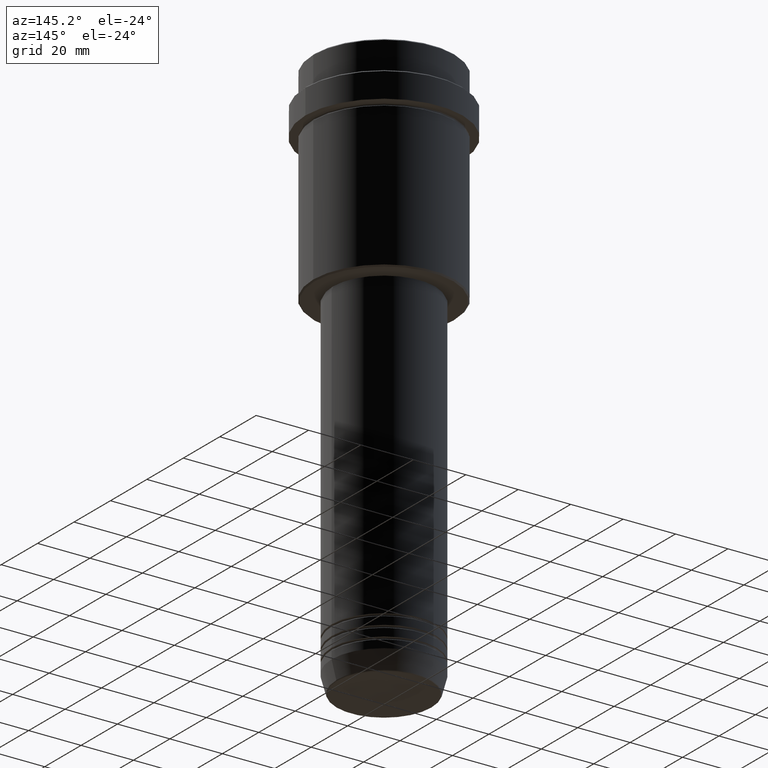
[diagram: clean part render]
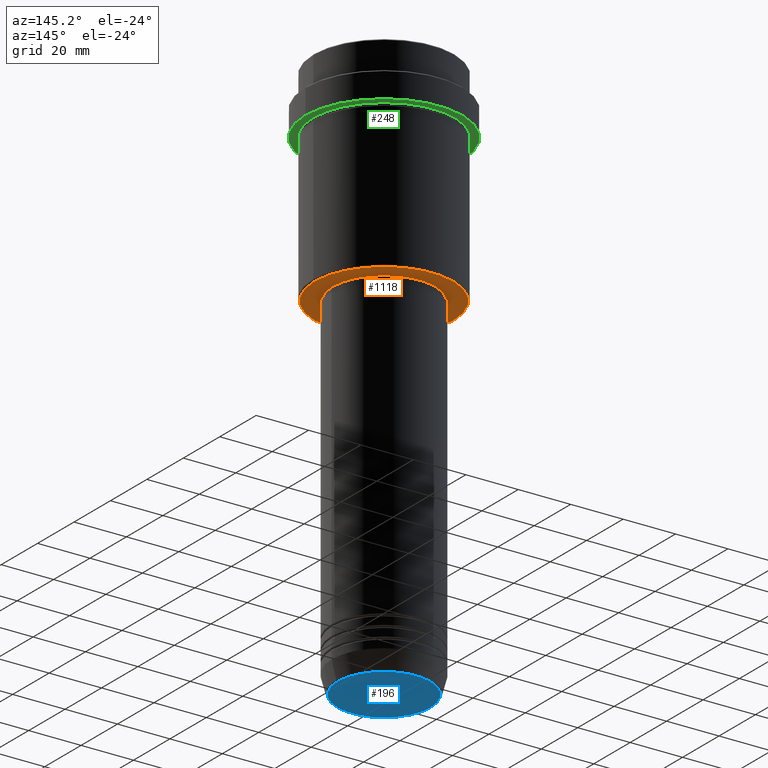
[diagram: same view with three faces highlighted in distinct colors, each labeled with its STEP entity id]
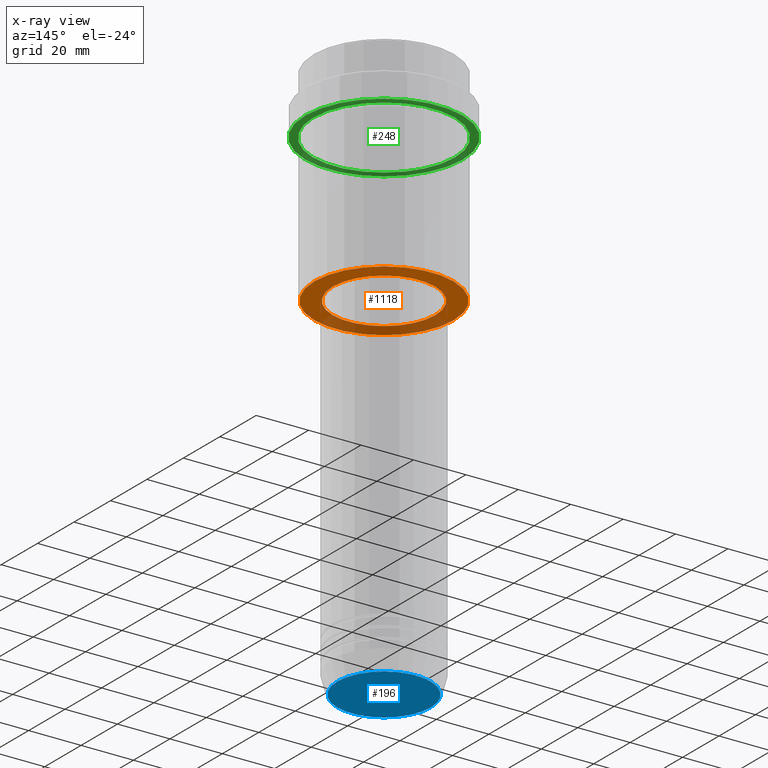
[diagram: x-ray of the same camera — body ghosted, the three highlighted faces saturated]
A machine part, auxiliary view with three faces highlighted in distinct colors.
The next image is the same camera in x-ray (body ghosted, the three faces saturated) — at least one of them is partly hidden behind the body in this view.
Their STEP definitions:

[orange] entity #1118 — the highlighted planar face has unit normal (0, 0, -1).
#9 = EDGE_LOOP ( 'NONE', ( #1410, #32 ) ) ;
#32 = ORIENTED_EDGE ( 'NONE', *, *, #1294, .T. ) ;
#86 = EDGE_CURVE ( 'NONE', #497, #361, #294, .T. ) ;
#132 = FACE_BOUND ( 'NONE', #9, .T. ) ;
#163 = CARTESIAN_POINT ( 'NONE',  ( 0.000000000000000000, 0.000000000000000000, -78.00000000000001421 ) ) ;
#167 = DIRECTION ( 'NONE',  ( -1.000000000000000000, 0.000000000000000000, 0.000000000000000000 ) ) ;
#180 = CIRCLE ( 'NONE', #1291, 19.50000000000000000 ) ;
#200 = CIRCLE ( 'NONE', #792, 26.49999999999999645 ) ;
#201 = CARTESIAN_POINT ( 'NONE',  ( 0.000000000000000000, 0.000000000000000000, -78.00000000000001421 ) ) ;
#253 = AXIS2_PLACEMENT_3D ( 'NONE', #201, #632, #505 ) ;
#265 = DIRECTION ( 'NONE',  ( 0.000000000000000000, 0.000000000000000000, -1.000000000000000000 ) ) ;
#277 = DIRECTION ( 'NONE',  ( 1.000000000000000000, 0.000000000000000000, 0.000000000000000000 ) ) ;
#294 = CIRCLE ( 'NONE', #253, 19.50000000000000000 ) ;
#333 = CARTESIAN_POINT ( 'NONE',  ( 26.49999999999999645, 0.000000000000000000, -78.00000000000001421 ) ) ;
#346 = FACE_OUTER_BOUND ( 'NONE', #592, .T. ) ;
#350 = EDGE_CURVE ( 'NONE', #889, #681, #200, .T. ) ;
#361 = VERTEX_POINT ( 'NONE', #1216 ) ;
#376 = CARTESIAN_POINT ( 'NONE',  ( 0.000000000000000000, 0.000000000000000000, -78.00000000000001421 ) ) ;
#383 = DIRECTION ( 'NONE',  ( 0.000000000000000000, 0.000000000000000000, -1.000000000000000000 ) ) ;
#469 = DIRECTION ( 'NONE',  ( -1.000000000000000000, 0.000000000000000000, -0.000000000000000000 ) ) ;
#497 = VERTEX_POINT ( 'NONE', #1395 ) ;
#505 = DIRECTION ( 'NONE',  ( 1.000000000000000000, 0.000000000000000000, 0.000000000000000000 ) ) ;
#592 = EDGE_LOOP ( 'NONE', ( #603, #973 ) ) ;
#603 = ORIENTED_EDGE ( 'NONE', *, *, #852, .T. ) ;
#632 = DIRECTION ( 'NONE',  ( -0.000000000000000000, -0.000000000000000000, 1.000000000000000000 ) ) ;
#681 = VERTEX_POINT ( 'NONE', #333 ) ;
#714 = DIRECTION ( 'NONE',  ( -0.000000000000000000, -0.000000000000000000, 1.000000000000000000 ) ) ;
#721 = CIRCLE ( 'NONE', #883, 26.49999999999999645 ) ;
#789 = PLANE ( 'NONE',  #1108 ) ;
#792 = AXIS2_PLACEMENT_3D ( 'NONE', #376, #383, #167 ) ;
#798 = CARTESIAN_POINT ( 'NONE',  ( 0.000000000000000000, 27.00000000000000000, -78.00000000000001421 ) ) ;
#852 = EDGE_CURVE ( 'NONE', #681, #889, #721, .T. ) ;
#883 = AXIS2_PLACEMENT_3D ( 'NONE', #1309, #894, #1323 ) ;
#889 = VERTEX_POINT ( 'NONE', #901 ) ;
#894 = DIRECTION ( 'NONE',  ( 0.000000000000000000, 0.000000000000000000, -1.000000000000000000 ) ) ;
#901 = CARTESIAN_POINT ( 'NONE',  ( -26.49999999999999645, 3.275930187719169552E-15, -78.00000000000001421 ) ) ;
#973 = ORIENTED_EDGE ( 'NONE', *, *, #350, .T. ) ;
#1108 = AXIS2_PLACEMENT_3D ( 'NONE', #798, #265, #469 ) ;
#1118 = ADVANCED_FACE ( 'NONE', ( #346, #132 ), #789, .T. ) ;
#1216 = CARTESIAN_POINT ( 'NONE',  ( -19.50000000000000000, 2.388061258337338939E-15, -78.00000000000001421 ) ) ;
#1291 = AXIS2_PLACEMENT_3D ( 'NONE', #163, #714, #277 ) ;
#1294 = EDGE_CURVE ( 'NONE', #361, #497, #180, .T. ) ;
#1309 = CARTESIAN_POINT ( 'NONE',  ( 0.000000000000000000, 0.000000000000000000, -78.00000000000001421 ) ) ;
#1323 = DIRECTION ( 'NONE',  ( -1.000000000000000000, 0.000000000000000000, 0.000000000000000000 ) ) ;
#1395 = CARTESIAN_POINT ( 'NONE',  ( 19.50000000000000000, 0.000000000000000000, -78.00000000000001421 ) ) ;
#1410 = ORIENTED_EDGE ( 'NONE', *, *, #86, .T. ) ;

[blue] entity #196 — the highlighted planar face has unit normal (0, -0, 1).
#7 = FACE_OUTER_BOUND ( 'NONE', #1411, .T. ) ;
#117 = DIRECTION ( 'NONE',  ( 0.000000000000000000, -0.000000000000000000, 1.000000000000000000 ) ) ;
#126 = AXIS2_PLACEMENT_3D ( 'NONE', #1071, #117, #1081 ) ;
#196 = ADVANCED_FACE ( 'NONE', ( #7 ), #210, .F. ) ;
#210 = PLANE ( 'NONE',  #126 ) ;
#241 = DIRECTION ( 'NONE',  ( 0.000000000000000000, 0.000000000000000000, -1.000000000000000000 ) ) ;
#387 = AXIS2_PLACEMENT_3D ( 'NONE', #488, #398, #1343 ) ;
#398 = DIRECTION ( 'NONE',  ( 0.000000000000000000, 0.000000000000000000, -1.000000000000000000 ) ) ;
#488 = CARTESIAN_POINT ( 'NONE',  ( 0.000000000000000000, 0.000000000000000000, -213.0000000000000284 ) ) ;
#631 = CIRCLE ( 'NONE', #1405, 17.74069215899265473 ) ;
#668 = CARTESIAN_POINT ( 'NONE',  ( 0.000000000000000000, 0.000000000000000000, -213.0000000000000284 ) ) ;
#750 = VERTEX_POINT ( 'NONE', #980 ) ;
#756 = ORIENTED_EDGE ( 'NONE', *, *, #1099, .T. ) ;
#903 = ORIENTED_EDGE ( 'NONE', *, *, #1261, .T. ) ;
#980 = CARTESIAN_POINT ( 'NONE',  ( -17.74069215899265473, 2.202181136001357170E-15, -213.0000000000000284 ) ) ;
#1071 = CARTESIAN_POINT ( 'NONE',  ( 0.000000000000000000, 0.000000000000000000, -213.0000000000000284 ) ) ;
#1081 = DIRECTION ( 'NONE',  ( 1.000000000000000000, 0.000000000000000000, 0.000000000000000000 ) ) ;
#1099 = EDGE_CURVE ( 'NONE', #750, #1252, #631, .T. ) ;
#1252 = VERTEX_POINT ( 'NONE', #1369 ) ;
#1261 = EDGE_CURVE ( 'NONE', #1252, #750, #1269, .T. ) ;
#1269 = CIRCLE ( 'NONE', #387, 17.74069215899265473 ) ;
#1316 = DIRECTION ( 'NONE',  ( 1.000000000000000000, 0.000000000000000000, 0.000000000000000000 ) ) ;
#1343 = DIRECTION ( 'NONE',  ( 1.000000000000000000, 0.000000000000000000, 0.000000000000000000 ) ) ;
#1369 = CARTESIAN_POINT ( 'NONE',  ( 17.74069215899265473, 0.000000000000000000, -213.0000000000000284 ) ) ;
#1405 = AXIS2_PLACEMENT_3D ( 'NONE', #668, #241, #1316 ) ;
#1411 = EDGE_LOOP ( 'NONE', ( #903, #756 ) ) ;

[green] entity #248 — the highlighted planar face has unit normal (0, 0, -1).
#21 = VERTEX_POINT ( 'NONE', #849 ) ;
#72 = VERTEX_POINT ( 'NONE', #1033 ) ;
#92 = CARTESIAN_POINT ( 'NONE',  ( 0.000000000000000000, 0.000000000000000000, -22.00000000000000000 ) ) ;
#125 = ORIENTED_EDGE ( 'NONE', *, *, #595, .F. ) ;
#130 = AXIS2_PLACEMENT_3D ( 'NONE', #787, #449, #1326 ) ;
#218 = EDGE_CURVE ( 'NONE', #757, #21, #498, .T. ) ;
#222 = ORIENTED_EDGE ( 'NONE', *, *, #616, .T. ) ;
#248 = ADVANCED_FACE ( 'NONE', ( #994, #1293 ), #1322, .T. ) ;
#250 = CARTESIAN_POINT ( 'NONE',  ( 29.99999999999999645, 0.000000000000000000, -22.00000000000000355 ) ) ;
#276 = AXIS2_PLACEMENT_3D ( 'NONE', #1392, #972, #1060 ) ;
#296 = AXIS2_PLACEMENT_3D ( 'NONE', #559, #989, #554 ) ;
#324 = DIRECTION ( 'NONE',  ( -1.000000000000000000, 0.000000000000000000, -0.000000000000000000 ) ) ;
#331 = VERTEX_POINT ( 'NONE', #250 ) ;
#338 = AXIS2_PLACEMENT_3D ( 'NONE', #92, #347, #1088 ) ;
#347 = DIRECTION ( 'NONE',  ( -0.000000000000000000, -0.000000000000000000, 1.000000000000000000 ) ) ;
#353 = DIRECTION ( 'NONE',  ( 0.000000000000000000, 0.000000000000000000, -1.000000000000000000 ) ) ;
#449 = DIRECTION ( 'NONE',  ( -0.000000000000000000, -0.000000000000000000, 1.000000000000000000 ) ) ;
#498 = CIRCLE ( 'NONE', #338, 26.99999999999999289 ) ;
#554 = DIRECTION ( 'NONE',  ( 1.000000000000000000, 0.000000000000000000, 0.000000000000000000 ) ) ;
#559 = CARTESIAN_POINT ( 'NONE',  ( 0.000000000000000000, 0.000000000000000000, -22.00000000000000355 ) ) ;
#595 = EDGE_CURVE ( 'NONE', #331, #72, #605, .T. ) ;
#605 = CIRCLE ( 'NONE', #296, 29.99999999999999645 ) ;
#616 = EDGE_CURVE ( 'NONE', #21, #757, #1222, .T. ) ;
#637 = CARTESIAN_POINT ( 'NONE',  ( 0.000000000000000000, 29.99999999999999645, -22.00000000000000000 ) ) ;
#757 = VERTEX_POINT ( 'NONE', #958 ) ;
#761 = EDGE_CURVE ( 'NONE', #72, #331, #1243, .T. ) ;
#787 = CARTESIAN_POINT ( 'NONE',  ( 0.000000000000000000, 0.000000000000000000, -22.00000000000000000 ) ) ;
#849 = CARTESIAN_POINT ( 'NONE',  ( 26.99999999999999289, 3.306546357697852944E-15, -22.00000000000000000 ) ) ;
#920 = EDGE_LOOP ( 'NONE', ( #1358, #222 ) ) ;
#958 = CARTESIAN_POINT ( 'NONE',  ( -26.99999999999999289, 0.000000000000000000, -22.00000000000000000 ) ) ;
#972 = DIRECTION ( 'NONE',  ( -0.000000000000000000, -0.000000000000000000, 1.000000000000000000 ) ) ;
#989 = DIRECTION ( 'NONE',  ( -0.000000000000000000, -0.000000000000000000, 1.000000000000000000 ) ) ;
#994 = FACE_BOUND ( 'NONE', #920, .T. ) ;
#1032 = AXIS2_PLACEMENT_3D ( 'NONE', #637, #353, #324 ) ;
#1033 = CARTESIAN_POINT ( 'NONE',  ( -29.99999999999999645, 3.673940397442058389E-15, -22.00000000000000355 ) ) ;
#1060 = DIRECTION ( 'NONE',  ( 1.000000000000000000, 0.000000000000000000, 0.000000000000000000 ) ) ;
#1088 = DIRECTION ( 'NONE',  ( -1.000000000000000000, 0.000000000000000000, 0.000000000000000000 ) ) ;
#1110 = EDGE_LOOP ( 'NONE', ( #125, #1279 ) ) ;
#1222 = CIRCLE ( 'NONE', #130, 26.99999999999999289 ) ;
#1243 = CIRCLE ( 'NONE', #276, 29.99999999999999645 ) ;
#1279 = ORIENTED_EDGE ( 'NONE', *, *, #761, .F. ) ;
#1293 = FACE_OUTER_BOUND ( 'NONE', #1110, .T. ) ;
#1322 = PLANE ( 'NONE',  #1032 ) ;
#1326 = DIRECTION ( 'NONE',  ( -1.000000000000000000, 0.000000000000000000, 0.000000000000000000 ) ) ;
#1358 = ORIENTED_EDGE ( 'NONE', *, *, #218, .T. ) ;
#1392 = CARTESIAN_POINT ( 'NONE',  ( 0.000000000000000000, 0.000000000000000000, -22.00000000000000355 ) ) ;